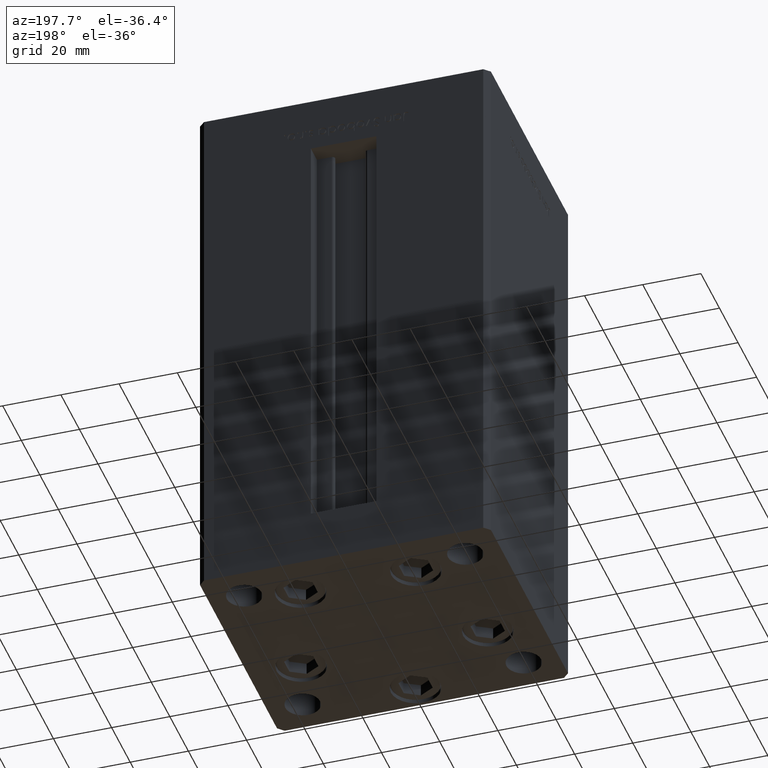
[diagram: clean part render]
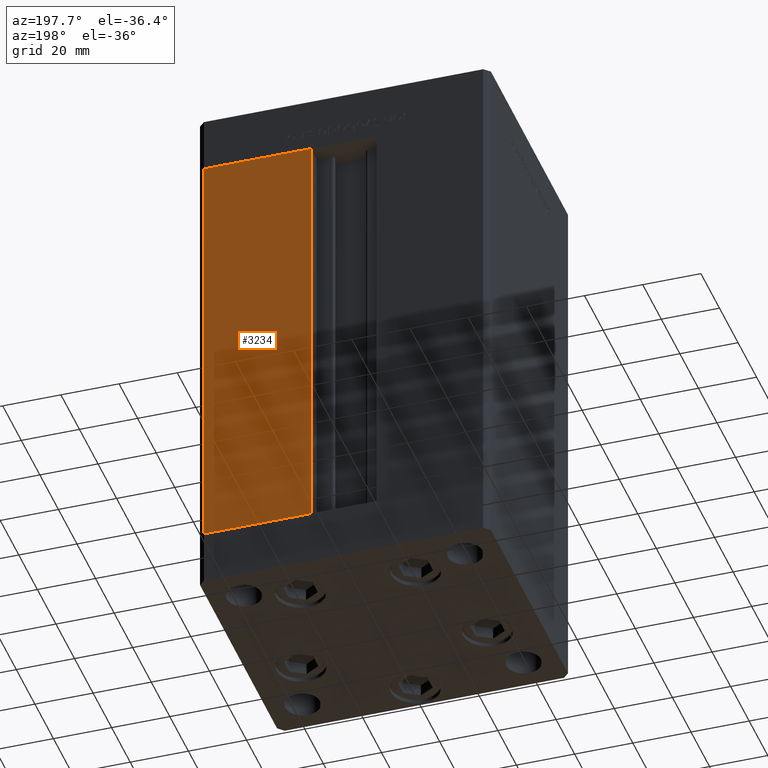
[diagram: same view with one face highlighted and labeled with its STEP entity id]
A machine part, auxiliary view. The second image highlights one B-rep face of the part: STEP entity #3234.
In plain terms, the highlighted planar face has unit normal (0, -1, 0).
Its self-contained STEP definition (entity closure, byte-faithful):
#3234 = ADVANCED_FACE ( 'NONE', ( #51700 ), #35636, .F. ) ;
#3386 = EDGE_CURVE ( 'NONE', #41866, #4220, #10473, .T. ) ;
#4220 = VERTEX_POINT ( 'NONE', #13484 ) ;
#4452 = DIRECTION ( 'NONE',  ( 0.000000000000000000, -1.000000000000000000, 0.000000000000000000 ) ) ;
#5369 = VECTOR ( 'NONE', #6493, 1000.000000000000000 ) ;
#5523 = VECTOR ( 'NONE', #36291, 1000.000000000000000 ) ;
#6493 = DIRECTION ( 'NONE',  ( -0.000000000000000000, -0.000000000000000000, 1.000000000000000000 ) ) ;
#9987 = EDGE_CURVE ( 'NONE', #4220, #40901, #20461, .T. ) ;
#10473 = LINE ( 'NONE', #42375, #5369 ) ;
#11786 = VECTOR ( 'NONE', #14008, 1000.000000000000000 ) ;
#12737 = CARTESIAN_POINT ( 'NONE',  ( 48.00000000000000711, 43.50000000000000000, 0.000000000000000000 ) ) ;
#13484 = CARTESIAN_POINT ( 'NONE',  ( 11.24999999999999112, 43.50000000000000000, 148.5000000000000000 ) ) ;
#14008 = DIRECTION ( 'NONE',  ( -0.000000000000000000, -0.000000000000000000, -1.000000000000000000 ) ) ;
#15123 = ORIENTED_EDGE ( 'NONE', *, *, #9987, .T. ) ;
#15497 = AXIS2_PLACEMENT_3D ( 'NONE', #40605, #4452, #39830 ) ;
#18930 = ORIENTED_EDGE ( 'NONE', *, *, #3386, .T. ) ;
#20206 = CARTESIAN_POINT ( 'NONE',  ( -11.24999999999999822, 43.50000000000000000, 148.5000000000000000 ) ) ;
#20461 = LINE ( 'NONE', #20206, #5523 ) ;
#22126 = DIRECTION ( 'NONE',  ( -1.000000000000000000, 0.000000000000000000, 0.000000000000000000 ) ) ;
#26366 = CARTESIAN_POINT ( 'NONE',  ( -11.24999999999999822, 43.50000000000000000, 0.000000000000000000 ) ) ;
#32284 = EDGE_CURVE ( 'NONE', #32777, #41866, #33494, .T. ) ;
#32777 = VERTEX_POINT ( 'NONE', #12737 ) ;
#33494 = LINE ( 'NONE', #26366, #46988 ) ;
#35636 = PLANE ( 'NONE',  #15497 ) ;
#36291 = DIRECTION ( 'NONE',  ( 1.000000000000000000, 0.000000000000000000, 0.000000000000000000 ) ) ;
#38506 = CARTESIAN_POINT ( 'NONE',  ( 48.00000000000000711, 43.50000000000000000, 148.5000000000000000 ) ) ;
#39830 = DIRECTION ( 'NONE',  ( 0.000000000000000000, -0.000000000000000000, -1.000000000000000000 ) ) ;
#40605 = CARTESIAN_POINT ( 'NONE',  ( -11.24999999999999822, 43.50000000000000000, 148.5000000000000000 ) ) ;
#40901 = VERTEX_POINT ( 'NONE', #51900 ) ;
#41216 = ORIENTED_EDGE ( 'NONE', *, *, #42377, .T. ) ;
#41866 = VERTEX_POINT ( 'NONE', #48721 ) ;
#42375 = CARTESIAN_POINT ( 'NONE',  ( 11.24999999999999822, 43.50000000000000000, 0.000000000000000000 ) ) ;
#42377 = EDGE_CURVE ( 'NONE', #40901, #32777, #42707, .T. ) ;
#42707 = LINE ( 'NONE', #38506, #11786 ) ;
#46142 = EDGE_LOOP ( 'NONE', ( #51931, #18930, #15123, #41216 ) ) ;
#46988 = VECTOR ( 'NONE', #22126, 1000.000000000000000 ) ;
#48721 = CARTESIAN_POINT ( 'NONE',  ( 11.24999999999999822, 43.50000000000000000, 0.000000000000000000 ) ) ;
#51700 = FACE_OUTER_BOUND ( 'NONE', #46142, .T. ) ;
#51900 = CARTESIAN_POINT ( 'NONE',  ( 48.00000000000000711, 43.50000000000000000, 148.5000000000000000 ) ) ;
#51931 = ORIENTED_EDGE ( 'NONE', *, *, #32284, .T. ) ;